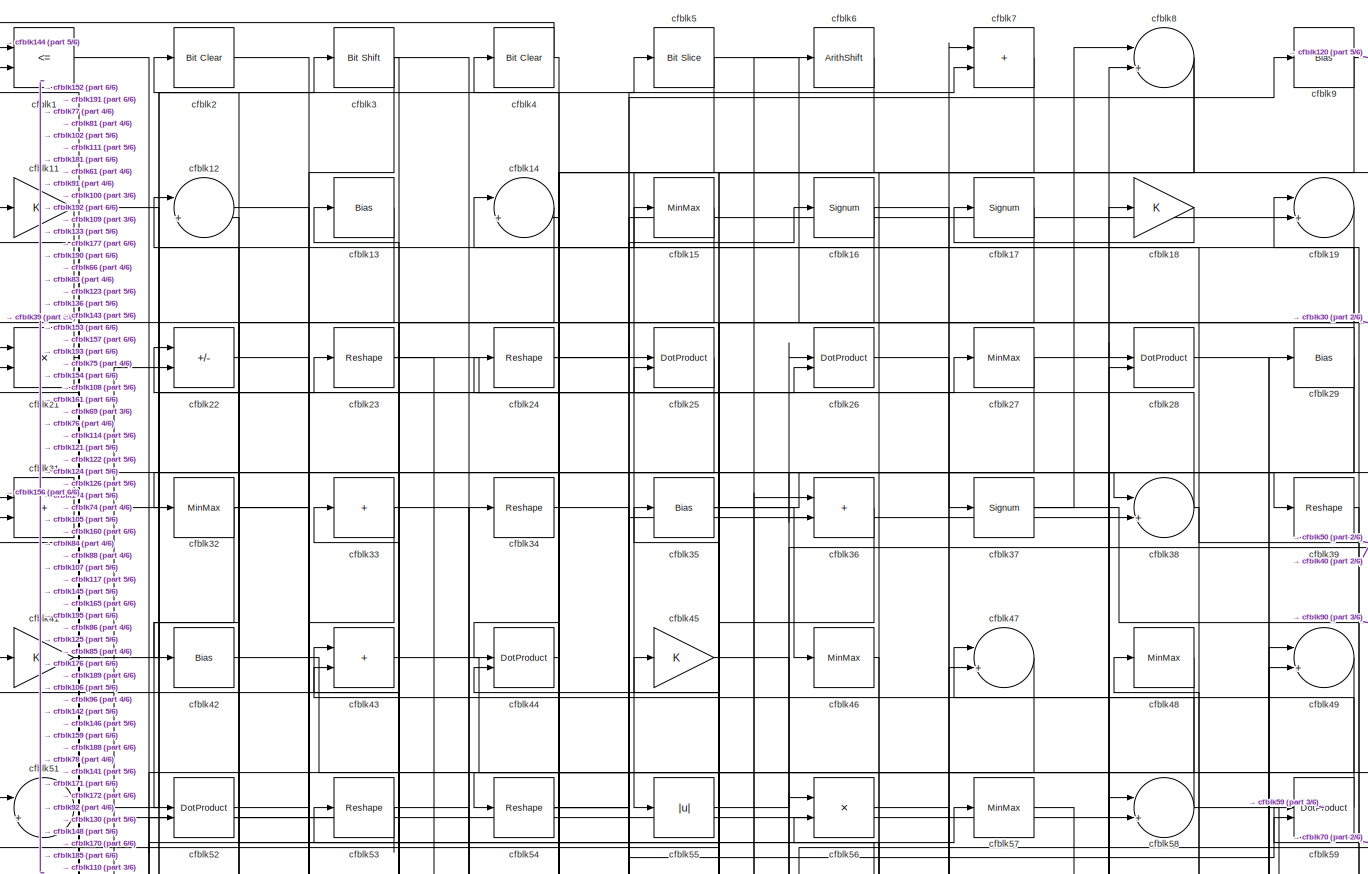
[diagram: root canvas - part 1/6, full width, top band]
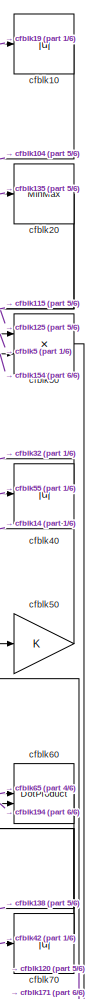
[diagram: root canvas - part 2/6, top right region]
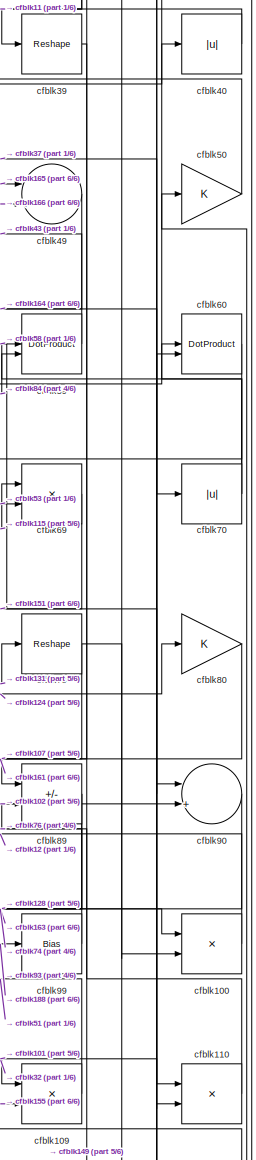
[diagram: root canvas - part 3/6, middle right region]
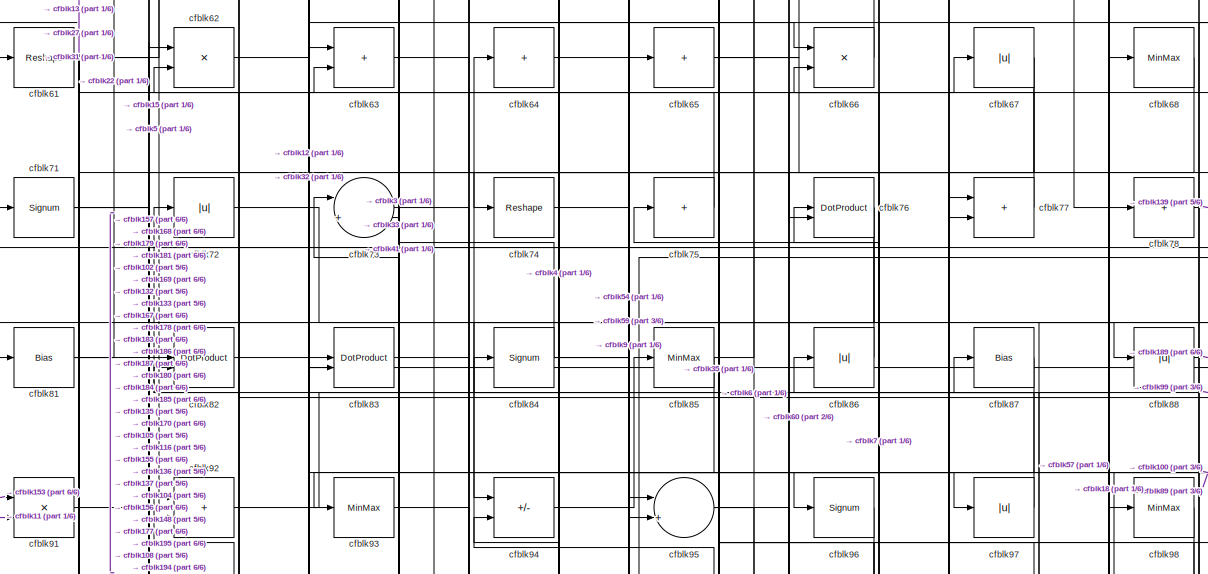
[diagram: root canvas - part 4/6, full width, middle band]
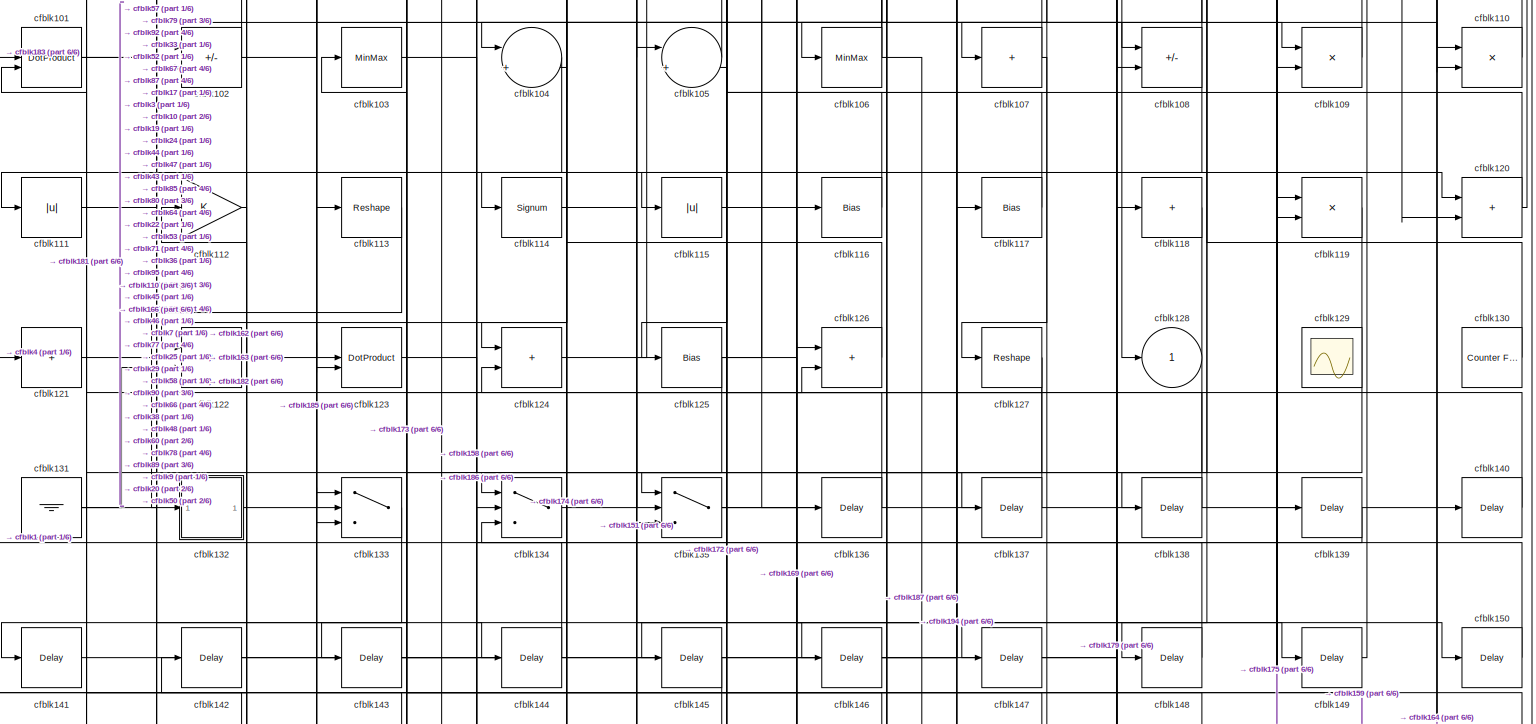
[diagram: root canvas - part 5/6, full width, middle band]
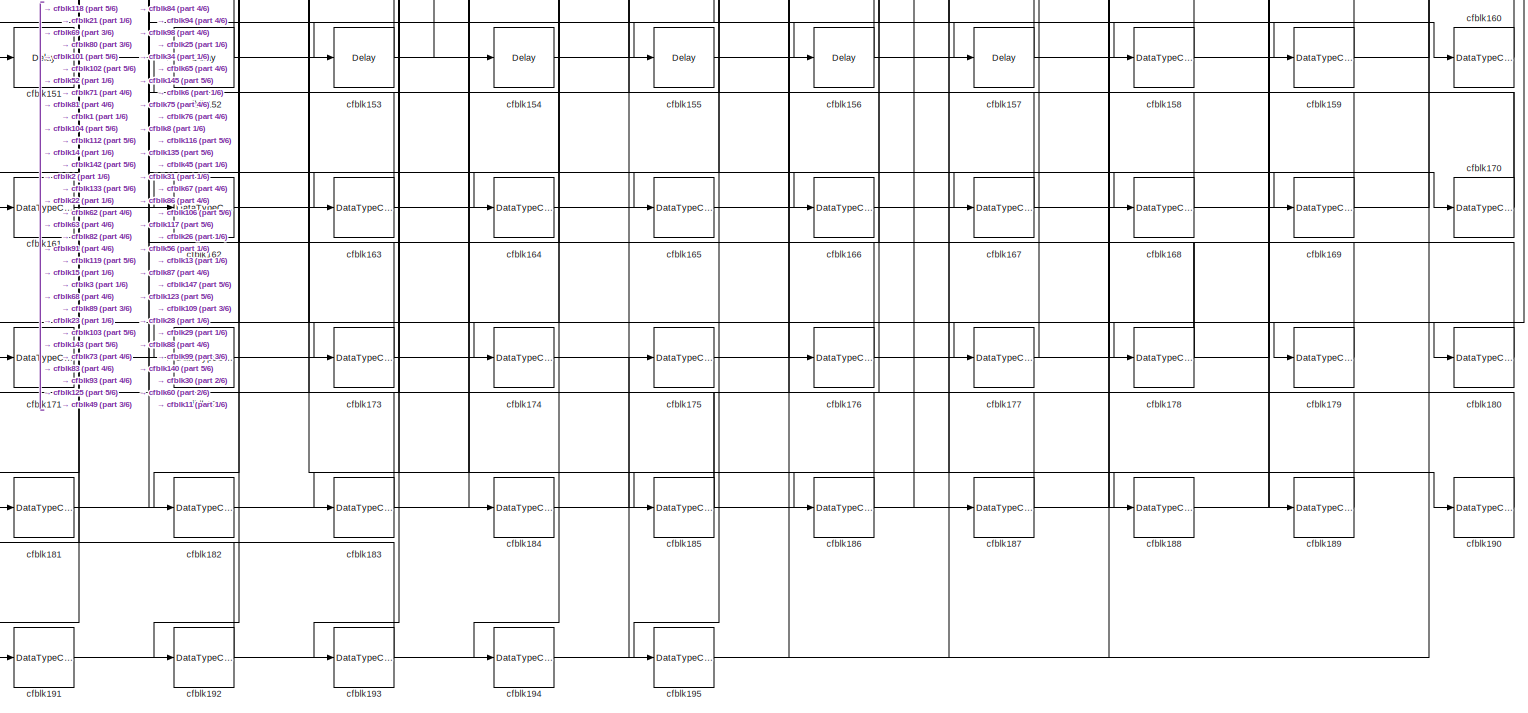
[diagram: root canvas - part 6/6, full width, bottom band]
MODEL slx_36b15ae6253b
KIND model
CONFIG AbsTol = auto
CONFIG EnableMultiTasking = off
CONFIG FixedStep = auto
CONFIG MaxStep = auto
CONFIG MinStep = auto
CONFIG RelTol = 1e-3
CONFIG SampleTimeConstraint = Unconstrained
CONFIG SolverName = VariableStepAuto
CONFIG StartTime = 0.0
CONFIG StopTime = 10.0
BLOCK [RelationalOperator] cfblk1
  InputSameDT = off
  Operator = <=
  OutDataTypeStr = boolean
BLOCK [Abs] cfblk10
  SaturateOnIntegerOverflow = off
BLOCK [Product] cfblk100
  Inputs = */
  RndMeth = Zero
  SaturateOnIntegerOverflow = on
BLOCK [DotProduct] cfblk101
  OutDataTypeStr = Inherit: Inherit via internal rule
BLOCK [Sum] cfblk102
  IconShape = rectangular
  Inputs = +-
BLOCK [MinMax] cfblk103
BLOCK [Sum] cfblk104
  Inputs = |++
BLOCK [Sum] cfblk105
  Inputs = |++
BLOCK [MinMax] cfblk106
BLOCK [Sum] cfblk107
  IconShape = rectangular
  Inputs = +
BLOCK [Sum] cfblk108
  IconShape = rectangular
  Inputs = +-
BLOCK [Product] cfblk109
  Inputs = */
  RndMeth = Zero
  SaturateOnIntegerOverflow = on
BLOCK [Gain] cfblk11
BLOCK [Product] cfblk110
  Inputs = */
  RndMeth = Zero
  SaturateOnIntegerOverflow = on
BLOCK [Abs] cfblk111
  SaturateOnIntegerOverflow = off
BLOCK [Gain] cfblk112
BLOCK [Reshape] cfblk113
BLOCK [Signum] cfblk114
BLOCK [Abs] cfblk115
  SaturateOnIntegerOverflow = off
BLOCK [Bias] cfblk116
  Bias = 0.0
  SaturateOnIntegerOverflow = off
BLOCK [Bias] cfblk117
  Bias = 0.0
  SaturateOnIntegerOverflow = off
BLOCK [Sum] cfblk118
  IconShape = rectangular
  Inputs = +
BLOCK [Product] cfblk119
  Inputs = */
  RndMeth = Zero
  SaturateOnIntegerOverflow = on
BLOCK [Sum] cfblk12
  Inputs = |++
BLOCK [Sum] cfblk120
  IconShape = rectangular
BLOCK [Sum] cfblk121
  IconShape = rectangular
  Inputs = +
BLOCK [Sum] cfblk122
  IconShape = rectangular
BLOCK [DotProduct] cfblk123
  OutDataTypeStr = Inherit: Inherit via internal rule
BLOCK [Sum] cfblk124
  IconShape = rectangular
BLOCK [Bias] cfblk125
  Bias = 0.0
  SaturateOnIntegerOverflow = off
BLOCK [Sum] cfblk126
  IconShape = rectangular
BLOCK [Reshape] cfblk127
BLOCK [Outport] cfblk128
  VectorParamsAs1DForOutWhenUnconnected = off
BLOCK [Scope] cfblk129
  Floating = on
  NumInputPorts = 1
  ScopeSpecificationString = Simulink.scopes.TimeScopeBlockCfg('CurrentConfiguration', extmgr.ConfigurationSet(extmgr.Configuration('Core','General UI',true,'FigureColor',[0.156862745098039 0.156862745098039 0.156862745098039]),extmgr.Configuration('Core','Source UI',true),extmgr.Configuration('Sources','WiredSimulink',true,'DataLoggingVariableName','ScopeData1','DataLoggingSaveFormat','StructureWithTime','DataLoggingLimitDat...<+2713ch>
BLOCK [Bias] cfblk13
  Bias = 0.0
  SaturateOnIntegerOverflow = off
BLOCK [Reference] cfblk130  REF=hdlsllib/Sources/Counter
Free-Running
  SourceBlock = hdlsllib/Sources/Counter\nFree-Running
  SourceType = Counter Free-Running
BLOCK [Ground] cfblk131
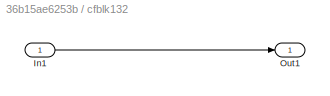
BLOCK [SubSystem] cfblk132
  LibrarySourceBlock = hdlsllib/Ports &\nSubsystems/Subsystem
BLOCK [Inport] cfblk132/In1
BLOCK [Outport] cfblk132/Out1
BLOCK [Switch] cfblk133
  InputSameDT = off
  SaturateOnIntegerOverflow = off
BLOCK [Switch] cfblk134
  InputSameDT = off
  SaturateOnIntegerOverflow = off
BLOCK [Switch] cfblk135
  InputSameDT = off
  SaturateOnIntegerOverflow = off
BLOCK [Delay] cfblk136
  InputPortMap = u0
  SampleTime = 1
BLOCK [Delay] cfblk137
  InputPortMap = u0
  SampleTime = 1
BLOCK [Delay] cfblk138
  InputPortMap = u0
  SampleTime = 1
BLOCK [Delay] cfblk139
  InputPortMap = u0
  SampleTime = 1
BLOCK [Sum] cfblk14
  Inputs = |++
BLOCK [Delay] cfblk140
  InputPortMap = u0
  SampleTime = 1
BLOCK [Delay] cfblk141
  InputPortMap = u0
  SampleTime = 1
BLOCK [Delay] cfblk142
  InputPortMap = u0
  SampleTime = 1
BLOCK [Delay] cfblk143
  InputPortMap = u0
  SampleTime = 1
BLOCK [Delay] cfblk144
  InputPortMap = u0
  SampleTime = 1
BLOCK [Delay] cfblk145
  InputPortMap = u0
  SampleTime = 1
BLOCK [Delay] cfblk146
  InputPortMap = u0
  SampleTime = 1
BLOCK [Delay] cfblk147
  InputPortMap = u0
  SampleTime = 1
BLOCK [Delay] cfblk148
  InputPortMap = u0
  SampleTime = 1
BLOCK [Delay] cfblk149
  InputPortMap = u0
  SampleTime = 1
BLOCK [MinMax] cfblk15
BLOCK [Delay] cfblk150
  InputPortMap = u0
  SampleTime = 1
BLOCK [Delay] cfblk151
  InputPortMap = u0
  SampleTime = 1
BLOCK [Delay] cfblk152
  InputPortMap = u0
  SampleTime = 1
BLOCK [Delay] cfblk153
  InputPortMap = u0
  SampleTime = 1
BLOCK [Delay] cfblk154
  InputPortMap = u0
  SampleTime = 1
BLOCK [Delay] cfblk155
  InputPortMap = u0
  SampleTime = 1
BLOCK [Delay] cfblk156
  InputPortMap = u0
  SampleTime = 1
BLOCK [Delay] cfblk157
  InputPortMap = u0
  SampleTime = 1
BLOCK [DataTypeConversion] cfblk158
  OutDataTypeStr = uint8
  RndMeth = Floor
  SaturateOnIntegerOverflow = off
BLOCK [DataTypeConversion] cfblk159
  OutDataTypeStr = uint8
  RndMeth = Floor
  SaturateOnIntegerOverflow = off
BLOCK [Signum] cfblk16
BLOCK [DataTypeConversion] cfblk160
  OutDataTypeStr = uint8
  RndMeth = Floor
  SaturateOnIntegerOverflow = off
BLOCK [DataTypeConversion] cfblk161
  OutDataTypeStr = uint8
  RndMeth = Floor
  SaturateOnIntegerOverflow = off
BLOCK [DataTypeConversion] cfblk162
  RndMeth = Floor
  SaturateOnIntegerOverflow = off
BLOCK [DataTypeConversion] cfblk163
  OutDataTypeStr = uint8
  RndMeth = Floor
  SaturateOnIntegerOverflow = off
BLOCK [DataTypeConversion] cfblk164
  OutDataTypeStr = uint8
  RndMeth = Floor
  SaturateOnIntegerOverflow = off
BLOCK [DataTypeConversion] cfblk165
  OutDataTypeStr = uint8
  RndMeth = Floor
  SaturateOnIntegerOverflow = off
BLOCK [DataTypeConversion] cfblk166
  OutDataTypeStr = uint8
  RndMeth = Floor
  SaturateOnIntegerOverflow = off
BLOCK [DataTypeConversion] cfblk167
  OutDataTypeStr = uint8
  RndMeth = Floor
  SaturateOnIntegerOverflow = off
BLOCK [DataTypeConversion] cfblk168
  OutDataTypeStr = uint8
  RndMeth = Floor
  SaturateOnIntegerOverflow = off
BLOCK [DataTypeConversion] cfblk169
  OutDataTypeStr = uint8
  RndMeth = Floor
  SaturateOnIntegerOverflow = off
BLOCK [Signum] cfblk17
BLOCK [DataTypeConversion] cfblk170
  RndMeth = Floor
  SaturateOnIntegerOverflow = off
BLOCK [DataTypeConversion] cfblk171
  OutDataTypeStr = uint8
  RndMeth = Floor
  SaturateOnIntegerOverflow = off
BLOCK [DataTypeConversion] cfblk172
  OutDataTypeStr = uint8
  RndMeth = Floor
  SaturateOnIntegerOverflow = off
BLOCK [DataTypeConversion] cfblk173
  OutDataTypeStr = uint8
  RndMeth = Floor
  SaturateOnIntegerOverflow = off
BLOCK [DataTypeConversion] cfblk174
  OutDataTypeStr = uint8
  RndMeth = Floor
  SaturateOnIntegerOverflow = off
BLOCK [DataTypeConversion] cfblk175
  OutDataTypeStr = uint8
  RndMeth = Floor
  SaturateOnIntegerOverflow = off
BLOCK [DataTypeConversion] cfblk176
  OutDataTypeStr = boolean
  RndMeth = Floor
  SaturateOnIntegerOverflow = off
BLOCK [DataTypeConversion] cfblk177
  OutDataTypeStr = uint8
  RndMeth = Floor
  SaturateOnIntegerOverflow = off
BLOCK [DataTypeConversion] cfblk178
  RndMeth = Floor
  SaturateOnIntegerOverflow = off
BLOCK [DataTypeConversion] cfblk179
  OutDataTypeStr = uint8
  RndMeth = Floor
  SaturateOnIntegerOverflow = off
BLOCK [Gain] cfblk18
BLOCK [DataTypeConversion] cfblk180
  OutDataTypeStr = uint8
  RndMeth = Floor
  SaturateOnIntegerOverflow = off
BLOCK [DataTypeConversion] cfblk181
  RndMeth = Floor
  SaturateOnIntegerOverflow = off
BLOCK [DataTypeConversion] cfblk182
  OutDataTypeStr = uint8
  RndMeth = Floor
  SaturateOnIntegerOverflow = off
BLOCK [DataTypeConversion] cfblk183
  OutDataTypeStr = uint8
  RndMeth = Floor
  SaturateOnIntegerOverflow = off
BLOCK [DataTypeConversion] cfblk184
  OutDataTypeStr = uint8
  RndMeth = Floor
  SaturateOnIntegerOverflow = off
BLOCK [DataTypeConversion] cfblk185
  RndMeth = Floor
  SaturateOnIntegerOverflow = off
BLOCK [DataTypeConversion] cfblk186
  OutDataTypeStr = uint8
  RndMeth = Floor
  SaturateOnIntegerOverflow = off
BLOCK [DataTypeConversion] cfblk187
  OutDataTypeStr = uint8
  RndMeth = Floor
  SaturateOnIntegerOverflow = off
BLOCK [DataTypeConversion] cfblk188
  OutDataTypeStr = uint8
  RndMeth = Floor
  SaturateOnIntegerOverflow = off
BLOCK [DataTypeConversion] cfblk189
  OutDataTypeStr = uint8
  RndMeth = Floor
  SaturateOnIntegerOverflow = off
BLOCK [Sum] cfblk19
  Inputs = |++
BLOCK [DataTypeConversion] cfblk190
  OutDataTypeStr = uint8
  RndMeth = Floor
  SaturateOnIntegerOverflow = off
BLOCK [DataTypeConversion] cfblk191
  RndMeth = Floor
  SaturateOnIntegerOverflow = off
BLOCK [DataTypeConversion] cfblk192
  OutDataTypeStr = uint8
  RndMeth = Floor
  SaturateOnIntegerOverflow = off
BLOCK [DataTypeConversion] cfblk193
  OutDataTypeStr = uint8
  RndMeth = Floor
  SaturateOnIntegerOverflow = off
BLOCK [DataTypeConversion] cfblk194
  RndMeth = Floor
  SaturateOnIntegerOverflow = off
BLOCK [DataTypeConversion] cfblk195
  OutDataTypeStr = uint8
  RndMeth = Floor
  SaturateOnIntegerOverflow = off
BLOCK [Reference] cfblk2  REF=simulink/Logic and Bit
Operations/Bit Clear
  LibrarySourceBlock = hdlsllib/Logic and Bit\nOperations/Bit Clear
  SourceBlock = simulink/Logic and Bit\nOperations/Bit Clear
  SourceType = Bit Clear
BLOCK [MinMax] cfblk20
BLOCK [Product] cfblk21
  Inputs = */
  RndMeth = Zero
  SaturateOnIntegerOverflow = on
BLOCK [Sum] cfblk22
  IconShape = rectangular
  Inputs = +-
BLOCK [Reshape] cfblk23
BLOCK [Reshape] cfblk24
BLOCK [DotProduct] cfblk25
  OutDataTypeStr = Inherit: Inherit via internal rule
BLOCK [DotProduct] cfblk26
  OutDataTypeStr = Inherit: Inherit via internal rule
BLOCK [MinMax] cfblk27
BLOCK [DotProduct] cfblk28
  OutDataTypeStr = Inherit: Inherit via internal rule
BLOCK [Bias] cfblk29
  Bias = 0.0
  SaturateOnIntegerOverflow = off
BLOCK [Reference] cfblk3  REF=hdlsllib/Logic and Bit
Operations/Bit Shift
  SourceBlock = hdlsllib/Logic and Bit\nOperations/Bit Shift
  SourceType = Bit Shift
BLOCK [Product] cfblk30
  Inputs = */
  RndMeth = Zero
  SaturateOnIntegerOverflow = on
BLOCK [Sum] cfblk31
  IconShape = rectangular
BLOCK [MinMax] cfblk32
BLOCK [Sum] cfblk33
  IconShape = rectangular
  Inputs = +
BLOCK [Reshape] cfblk34
BLOCK [Bias] cfblk35
  Bias = 0.0
  SaturateOnIntegerOverflow = off
BLOCK [Sum] cfblk36
  IconShape = rectangular
BLOCK [Signum] cfblk37
BLOCK [Sum] cfblk38
  Inputs = |++
BLOCK [Reshape] cfblk39
BLOCK [Reference] cfblk4  REF=simulink/Logic and Bit
Operations/Bit Clear
  LibrarySourceBlock = hdlsllib/Logic and Bit\nOperations/Bit Clear
  SourceBlock = simulink/Logic and Bit\nOperations/Bit Clear
  SourceType = Bit Clear
BLOCK [Abs] cfblk40
  SaturateOnIntegerOverflow = off
BLOCK [Gain] cfblk41
BLOCK [Bias] cfblk42
  Bias = 0.0
  SaturateOnIntegerOverflow = off
BLOCK [Sum] cfblk43
  IconShape = rectangular
BLOCK [DotProduct] cfblk44
  OutDataTypeStr = Inherit: Inherit via internal rule
BLOCK [Gain] cfblk45
BLOCK [MinMax] cfblk46
BLOCK [Sum] cfblk47
  Inputs = |++
BLOCK [MinMax] cfblk48
BLOCK [Sum] cfblk49
  Inputs = |++
BLOCK [Reference] cfblk5  REF=hdlsllib/Logic and Bit
Operations/Bit Slice
  SourceBlock = hdlsllib/Logic and Bit\nOperations/Bit Slice
  SourceType = Bit Slice
BLOCK [Gain] cfblk50
BLOCK [Sum] cfblk51
  Inputs = |++
BLOCK [DotProduct] cfblk52
  OutDataTypeStr = Inherit: Inherit via internal rule
BLOCK [Reshape] cfblk53
BLOCK [Reshape] cfblk54
BLOCK [Abs] cfblk55
  SaturateOnIntegerOverflow = off
BLOCK [Product] cfblk56
  Inputs = */
  RndMeth = Zero
  SaturateOnIntegerOverflow = on
BLOCK [MinMax] cfblk57
BLOCK [Sum] cfblk58
  Inputs = |++
BLOCK [DotProduct] cfblk59
  OutDataTypeStr = Inherit: Inherit via internal rule
BLOCK [ArithShift] cfblk6
  BitShiftNumber = 8
  InputPortMap = u0
BLOCK [DotProduct] cfblk60
  OutDataTypeStr = Inherit: Inherit via internal rule
BLOCK [Reshape] cfblk61
BLOCK [Product] cfblk62
  Inputs = */
  RndMeth = Zero
  SaturateOnIntegerOverflow = on
BLOCK [Sum] cfblk63
  IconShape = rectangular
BLOCK [Sum] cfblk64
  IconShape = rectangular
  Inputs = +
BLOCK [Sum] cfblk65
  IconShape = rectangular
  Inputs = +
BLOCK [Product] cfblk66
  Inputs = */
  RndMeth = Zero
  SaturateOnIntegerOverflow = on
BLOCK [Abs] cfblk67
  SaturateOnIntegerOverflow = off
BLOCK [MinMax] cfblk68
BLOCK [Product] cfblk69
  Inputs = */
  RndMeth = Zero
  SaturateOnIntegerOverflow = on
BLOCK [Sum] cfblk7
  IconShape = rectangular
BLOCK [Abs] cfblk70
  SaturateOnIntegerOverflow = off
BLOCK [Signum] cfblk71
BLOCK [Abs] cfblk72
  SaturateOnIntegerOverflow = off
BLOCK [Sum] cfblk73
  Inputs = |++
BLOCK [Reshape] cfblk74
BLOCK [Sum] cfblk75
  IconShape = rectangular
  Inputs = +
BLOCK [DotProduct] cfblk76
  OutDataTypeStr = Inherit: Inherit via internal rule
BLOCK [Sum] cfblk77
  IconShape = rectangular
BLOCK [Sum] cfblk78
  IconShape = rectangular
  Inputs = +
BLOCK [Reshape] cfblk79
BLOCK [Sum] cfblk8
  Inputs = |++
BLOCK [Gain] cfblk80
BLOCK [Bias] cfblk81
  Bias = 0.0
  SaturateOnIntegerOverflow = off
BLOCK [DotProduct] cfblk82
  OutDataTypeStr = Inherit: Inherit via internal rule
BLOCK [DotProduct] cfblk83
  OutDataTypeStr = Inherit: Inherit via internal rule
BLOCK [Signum] cfblk84
BLOCK [MinMax] cfblk85
BLOCK [Abs] cfblk86
  SaturateOnIntegerOverflow = off
BLOCK [Bias] cfblk87
  Bias = 0.0
  SaturateOnIntegerOverflow = off
BLOCK [Abs] cfblk88
  SaturateOnIntegerOverflow = off
BLOCK [Sum] cfblk89
  IconShape = rectangular
  Inputs = +-
BLOCK [Bias] cfblk9
  Bias = 0.0
  SaturateOnIntegerOverflow = off
BLOCK [Sum] cfblk90
  Inputs = |++
BLOCK [Product] cfblk91
  Inputs = */
  RndMeth = Zero
  SaturateOnIntegerOverflow = on
BLOCK [Sum] cfblk92
  IconShape = rectangular
BLOCK [MinMax] cfblk93
BLOCK [Sum] cfblk94
  IconShape = rectangular
  Inputs = +-
BLOCK [Sum] cfblk95
  Inputs = |++
BLOCK [Signum] cfblk96
BLOCK [Abs] cfblk97
  SaturateOnIntegerOverflow = off
BLOCK [MinMax] cfblk98
BLOCK [Bias] cfblk99
  Bias = 0.0
  SaturateOnIntegerOverflow = off
LINE cfblk100:1 -> cfblk12:2
NET cfblk101:1 -> cfblk110:2, cfblk166:1
NET cfblk102:1 -> cfblk90:2, cfblk92:1
LINE cfblk103:1 -> cfblk158:1
LINE cfblk104:1 -> cfblk182:1
LINE cfblk105:1 -> cfblk64:1
NET cfblk106:1 -> cfblk187:1, cfblk44:2, cfblk45:1
NET cfblk107:1 -> cfblk127:1, cfblk25:2
NET cfblk108:1 -> cfblk111:1, cfblk66:2
LINE cfblk109:1 -> cfblk51:1
LINE cfblk10:1 -> cfblk104:2
LINE cfblk110:1 -> cfblk59:1
LINE cfblk111:1 -> cfblk57:1
LINE cfblk112:1 -> cfblk162:1
LINE cfblk113:1 -> cfblk132:1
LINE cfblk114:1 -> cfblk146:1
NET cfblk115:1 -> cfblk150:1, cfblk69:1
LINE cfblk116:1 -> cfblk71:1
LINE cfblk117:1 -> cfblk53:1
LINE cfblk118:1 -> cfblk181:1
LINE cfblk119:1 -> cfblk173:1
NET cfblk11:1 -> cfblk39:1, cfblk91:2
NET cfblk120:1 -> cfblk22:1, cfblk50:1
LINE cfblk121:1 -> cfblk144:1
LINE cfblk122:1 -> cfblk113:1
LINE cfblk123:1 -> cfblk147:1
LINE cfblk124:1 -> cfblk80:1
NET cfblk125:1 -> cfblk149:1, cfblk174:1, cfblk36:1
LINE cfblk126:1 -> cfblk24:1
NET cfblk127:1 -> cfblk124:2, cfblk135:1
LINE cfblk12:1 -> cfblk83:1
LINE cfblk130:1 -> cfblk48:1
NET cfblk131:1 -> cfblk122:2, cfblk79:1
LINE cfblk132/In1:1 -> cfblk132/Out1:1
LINE cfblk132:1 -> cfblk67:1
LINE cfblk133:1 -> cfblk141:1
LINE cfblk134:1 -> cfblk126:2
NET cfblk135:1 -> cfblk169:1, cfblk20:1
LINE cfblk136:1 -> cfblk43:2
LINE cfblk137:1 -> cfblk105:2
LINE cfblk138:1 -> cfblk126:1
LINE cfblk139:1 -> cfblk134:3
LINE cfblk13:1 -> cfblk81:1
LINE cfblk140:1 -> cfblk101:2
LINE cfblk141:1 -> cfblk58:1
LINE cfblk142:1 -> cfblk47:2
LINE cfblk143:1 -> cfblk186:1
LINE cfblk144:1 -> cfblk1:1
LINE cfblk145:1 -> cfblk172:1
LINE cfblk146:1 -> cfblk7:1
LINE cfblk147:1 -> cfblk179:1
LINE cfblk148:1 -> cfblk77:1
LINE cfblk149:1 -> cfblk89:2
LINE cfblk14:1 -> cfblk192:1
LINE cfblk150:1 -> cfblk134:2
LINE cfblk151:1 -> cfblk135:3
LINE cfblk152:1 -> cfblk1:2
LINE cfblk153:1 -> cfblk91:1
LINE cfblk154:1 -> cfblk30:2
LINE cfblk155:1 -> cfblk109:2
LINE cfblk156:1 -> cfblk31:1
LINE cfblk157:1 -> cfblk13:1
LINE cfblk158:1 -> cfblk123:1
LINE cfblk159:1 -> cfblk103:1
LINE cfblk15:1 -> cfblk153:1
LINE cfblk160:1 -> cfblk11:1
LINE cfblk161:1 -> cfblk34:1
NET cfblk162:1 -> cfblk116:1, cfblk142:1
LINE cfblk163:1 -> cfblk112:1
LINE cfblk164:1 -> cfblk140:1
LINE cfblk165:1 -> cfblk49:1
LINE cfblk166:1 -> cfblk49:2
LINE cfblk167:1 -> cfblk75:1
LINE cfblk168:1 -> cfblk82:1
LINE cfblk169:1 -> cfblk82:2
NET cfblk16:1 -> cfblk37:1, cfblk42:1
NET cfblk170:1 -> cfblk25:1, cfblk84:1
LINE cfblk171:1 -> cfblk28:1
LINE cfblk172:1 -> cfblk28:2
LINE cfblk173:1 -> cfblk133:1
LINE cfblk174:1 -> cfblk119:1
LINE cfblk175:1 -> cfblk119:2
LINE cfblk176:1 -> cfblk2:1
LINE cfblk177:1 -> cfblk87:1
NET cfblk178:1 -> cfblk152:1, cfblk86:1, cfblk94:2
LINE cfblk179:1 -> cfblk62:1
LINE cfblk17:1 -> cfblk143:1
LINE cfblk180:1 -> cfblk62:2
NET cfblk181:1 -> cfblk52:2, cfblk65:1
LINE cfblk182:1 -> cfblk118:1
LINE cfblk183:1 -> cfblk101:1
LINE cfblk184:1 -> cfblk68:1
NET cfblk185:1 -> cfblk102:1, cfblk29:1, cfblk63:1
LINE cfblk186:1 -> cfblk73:1
LINE cfblk187:1 -> cfblk73:2
LINE cfblk188:1 -> cfblk99:1
LINE cfblk189:1 -> cfblk56:1
LINE cfblk18:1 -> cfblk17:1
LINE cfblk190:1 -> cfblk56:2
NET cfblk191:1 -> cfblk175:1, cfblk26:1
LINE cfblk192:1 -> cfblk21:1
LINE cfblk193:1 -> cfblk21:2
NET cfblk194:1 -> cfblk117:1, cfblk60:2
LINE cfblk195:1 -> cfblk98:1
LINE cfblk19:1 -> cfblk122:1
LINE cfblk1:1 -> cfblk58:2
NET cfblk20:1 -> cfblk115:1, cfblk125:1
LINE cfblk21:1 -> cfblk191:1
LINE cfblk22:1 -> cfblk190:1
NET cfblk23:1 -> cfblk154:1, cfblk26:2
NET cfblk24:1 -> cfblk16:1, cfblk7:2
LINE cfblk25:1 -> cfblk124:1
LINE cfblk26:1 -> cfblk159:1
NET cfblk27:1 -> cfblk61:1, cfblk8:2
LINE cfblk28:1 -> cfblk170:1
NET cfblk29:1 -> cfblk108:2, cfblk36:2, cfblk4:1
LINE cfblk2:1 -> cfblk177:1
LINE cfblk30:1 -> cfblk171:1
LINE cfblk31:1 -> cfblk27:1
NET cfblk32:1 -> cfblk109:1, cfblk52:1, cfblk66:1
NET cfblk33:1 -> cfblk108:1, cfblk133:3
LINE cfblk34:1 -> cfblk160:1
NET cfblk35:1 -> cfblk38:1, cfblk46:1
LINE cfblk36:1 -> cfblk145:1
NET cfblk37:1 -> cfblk8:1, cfblk90:1
NET cfblk38:1 -> cfblk148:1, cfblk14:2
LINE cfblk39:1 -> cfblk89:1
NET cfblk3:1 -> cfblk123:2, cfblk193:1, cfblk76:2
LINE cfblk40:1 -> cfblk32:1
LINE cfblk41:1 -> cfblk23:1
LINE cfblk42:1 -> cfblk70:1
LINE cfblk43:1 -> cfblk105:1
LINE cfblk44:1 -> cfblk114:1
LINE cfblk45:1 -> cfblk176:1
LINE cfblk46:1 -> cfblk106:1
LINE cfblk47:1 -> cfblk134:1
LINE cfblk48:1 -> cfblk102:2
LINE cfblk49:1 -> cfblk164:1
NET cfblk4:1 -> cfblk121:1, cfblk74:1
LINE cfblk50:1 -> cfblk14:1
LINE cfblk51:1 -> cfblk3:1
LINE cfblk52:1 -> cfblk120:1
NET cfblk53:1 -> cfblk51:2, cfblk69:2
NET cfblk54:1 -> cfblk19:2, cfblk38:2, cfblk88:1
LINE cfblk55:1 -> cfblk40:1
LINE cfblk56:1 -> cfblk188:1
LINE cfblk57:1 -> cfblk78:1
NET cfblk58:1 -> cfblk110:1, cfblk47:1
LINE cfblk59:1 -> cfblk43:1
NET cfblk5:1 -> cfblk30:1, cfblk44:1
LINE cfblk60:1 -> cfblk138:1
NET cfblk61:1 -> cfblk5:1, cfblk63:2
LINE cfblk62:1 -> cfblk178:1
LINE cfblk63:1 -> cfblk97:1
LINE cfblk64:1 -> cfblk95:1
NET cfblk65:1 -> cfblk60:1, cfblk77:2
LINE cfblk66:1 -> cfblk12:1
NET cfblk67:1 -> cfblk156:1, cfblk92:2
LINE cfblk68:1 -> cfblk183:1
LINE cfblk69:1 -> cfblk151:1
LINE cfblk6:1 -> cfblk165:1
NET cfblk70:1 -> cfblk10:1, cfblk19:1
NET cfblk71:1 -> cfblk168:1, cfblk83:2
LINE cfblk72:1 -> cfblk95:2
LINE cfblk73:1 -> cfblk185:1
LINE cfblk74:1 -> cfblk100:1
LINE cfblk75:1 -> cfblk33:1
NET cfblk76:1 -> cfblk155:1, cfblk94:1
LINE cfblk77:1 -> cfblk31:2
LINE cfblk78:1 -> cfblk139:1
NET cfblk79:1 -> cfblk100:2, cfblk107:1
LINE cfblk7:1 -> cfblk96:1
LINE cfblk80:1 -> cfblk161:1
NET cfblk81:1 -> cfblk157:1, cfblk22:2
LINE cfblk82:1 -> cfblk167:1
LINE cfblk83:1 -> cfblk184:1
NET cfblk84:1 -> cfblk41:1, cfblk59:2, cfblk9:1
NET cfblk85:1 -> cfblk135:2, cfblk6:1
LINE cfblk86:1 -> cfblk35:1
LINE cfblk87:1 -> cfblk133:2
LINE cfblk88:1 -> cfblk189:1
NET cfblk89:1 -> cfblk163:1, cfblk93:1
NET cfblk8:1 -> cfblk195:1, cfblk54:1
LINE cfblk90:1 -> cfblk128:1
LINE cfblk91:1 -> cfblk15:1
LINE cfblk92:1 -> cfblk18:1
LINE cfblk93:1 -> cfblk180:1
LINE cfblk94:1 -> cfblk85:1
NET cfblk95:1 -> cfblk136:1, cfblk137:1
LINE cfblk96:1 -> cfblk104:1
LINE cfblk97:1 -> cfblk72:1
LINE cfblk98:1 -> cfblk194:1
LINE cfblk99:1 -> cfblk76:1
NET cfblk9:1 -> cfblk120:2, cfblk55:1
note: NET lines group one-source signal fan-out (src -> all destinations, sorted); 1:1 wires keep LINE
